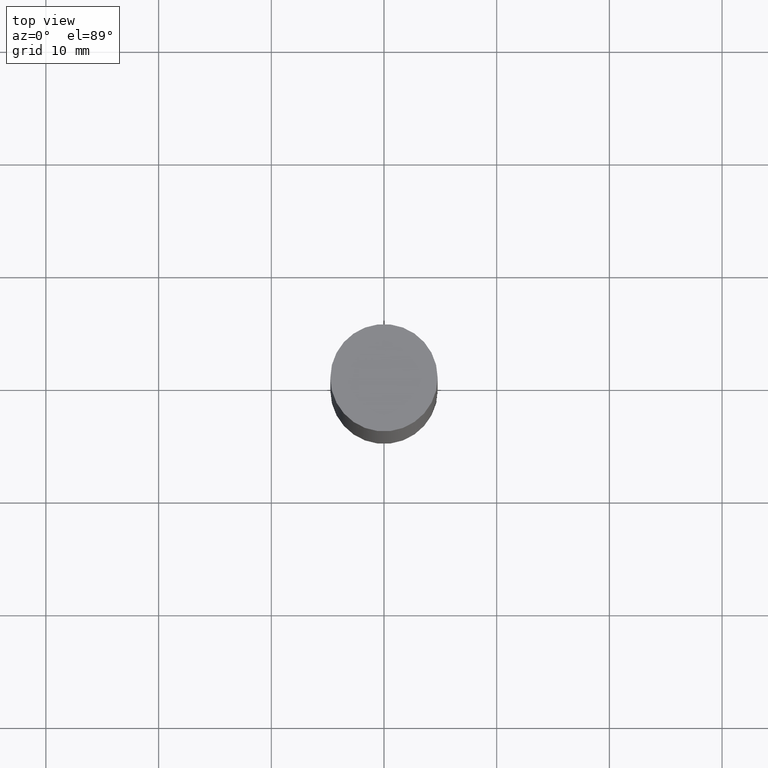
[diagram: clean part render]
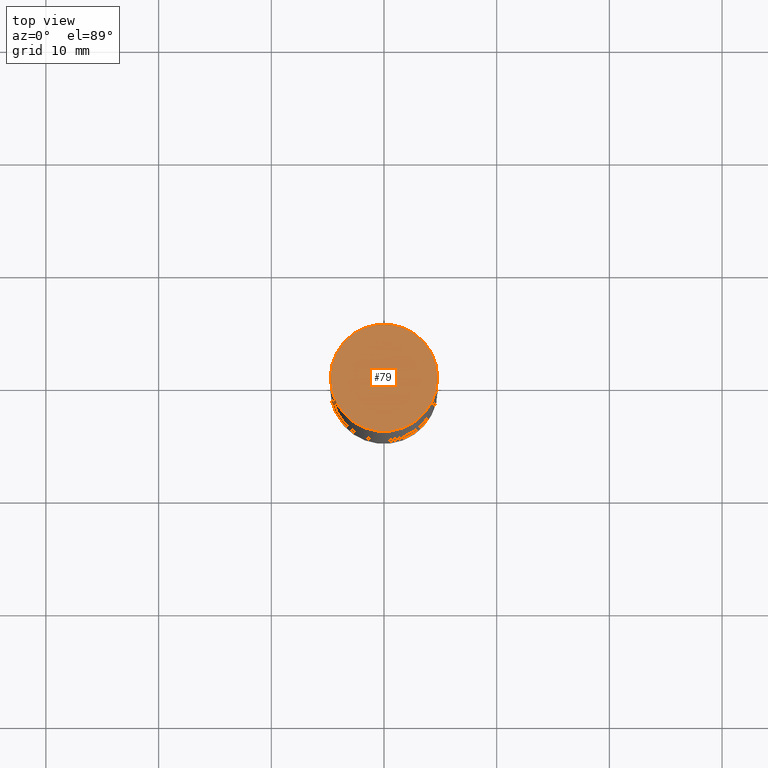
[diagram: same view with one face highlighted and labeled with its STEP entity id]
A machine part, top view. The second image highlights one B-rep face of the part: STEP entity #79.
In plain terms, the highlighted planar face has unit normal (0, 0, 1).
Its self-contained STEP definition (entity closure, byte-faithful):
#2 = PLANE ( 'NONE',  #73 ) ;
#6 = VERTEX_POINT ( 'NONE', #224 ) ;
#71 = EDGE_LOOP ( 'NONE', ( #417, #649 ) ) ;
#73 = AXIS2_PLACEMENT_3D ( 'NONE', #251, #245, #375 ) ;
#79 = ADVANCED_FACE ( 'NONE', ( #671 ), #2, .T. ) ;
#126 = DIRECTION ( 'NONE',  ( 1.000000000000000000, -6.982962677686265922E-15, 0.000000000000000000 ) ) ;
#182 = CIRCLE ( 'NONE', #481, 0.1875000000000000278 ) ;
#224 = CARTESIAN_POINT ( 'NONE',  ( 0.1875000000000000278, -1.307544161180414563E-15, 5.463695987328526437E-16 ) ) ;
#245 = DIRECTION ( 'NONE',  ( 2.438088387897959769E-29, 3.492890411551753071E-15, 1.000000000000000000 ) ) ;
#251 = CARTESIAN_POINT ( 'NONE',  ( 1.309305502066236145E-15, 0.1874999999999999722, 0.000000000000000000 ) ) ;
#325 = AXIS2_PLACEMENT_3D ( 'NONE', #640, #580, #480 ) ;
#353 = EDGE_CURVE ( 'NONE', #593, #6, #669, .T. ) ;
#375 = DIRECTION ( 'NONE',  ( -1.000000000000000000, 6.982962677686265922E-15, -9.839502134516470631E-33 ) ) ;
#393 = CARTESIAN_POINT ( 'NONE',  ( 6.113672015462842613E-29, 1.761340885760521790E-18, 5.463695987328526437E-16 ) ) ;
#417 = ORIENTED_EDGE ( 'NONE', *, *, #475, .T. ) ;
#475 = EDGE_CURVE ( 'NONE', #6, #593, #182, .T. ) ;
#480 = DIRECTION ( 'NONE',  ( 1.000000000000000000, -6.982962677686265922E-15, 0.000000000000000000 ) ) ;
#481 = AXIS2_PLACEMENT_3D ( 'NONE', #393, #653, #126 ) ;
#539 = CARTESIAN_POINT ( 'NONE',  ( -0.1875000000000000278, 3.066025098218802702E-16, 5.463695987328561936E-16 ) ) ;
#580 = DIRECTION ( 'NONE',  ( 2.445468806185136597E-29, 3.492890411551752677E-15, 1.000000000000000000 ) ) ;
#593 = VERTEX_POINT ( 'NONE', #539 ) ;
#640 = CARTESIAN_POINT ( 'NONE',  ( 6.113672015462842613E-29, 1.761340885760521790E-18, 5.463695987328526437E-16 ) ) ;
#649 = ORIENTED_EDGE ( 'NONE', *, *, #353, .T. ) ;
#653 = DIRECTION ( 'NONE',  ( 2.445468806185136597E-29, 3.492890411551752677E-15, 1.000000000000000000 ) ) ;
#669 = CIRCLE ( 'NONE', #325, 0.1875000000000000278 ) ;
#671 = FACE_OUTER_BOUND ( 'NONE', #71, .T. ) ;